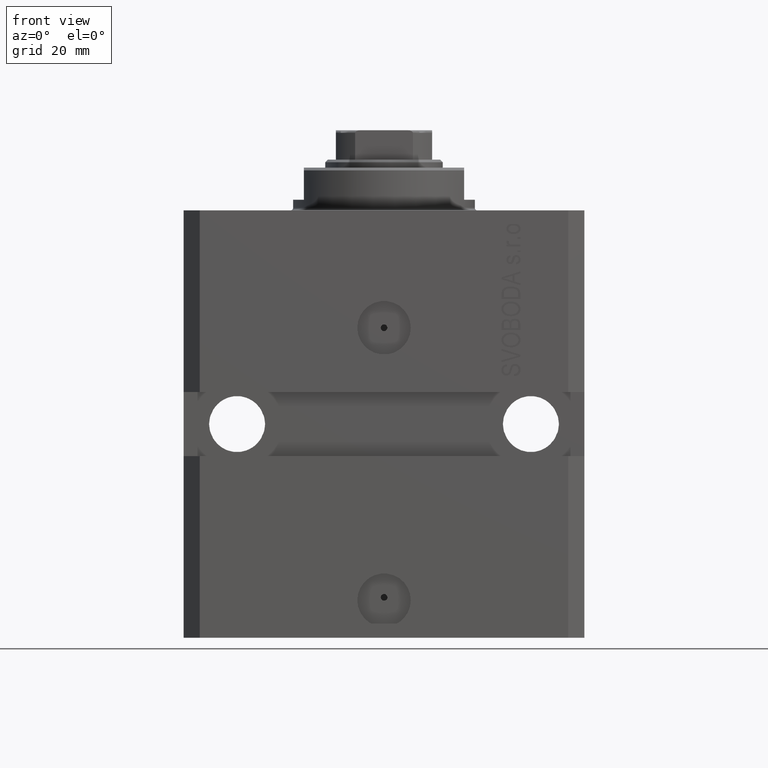
[diagram: clean part render]
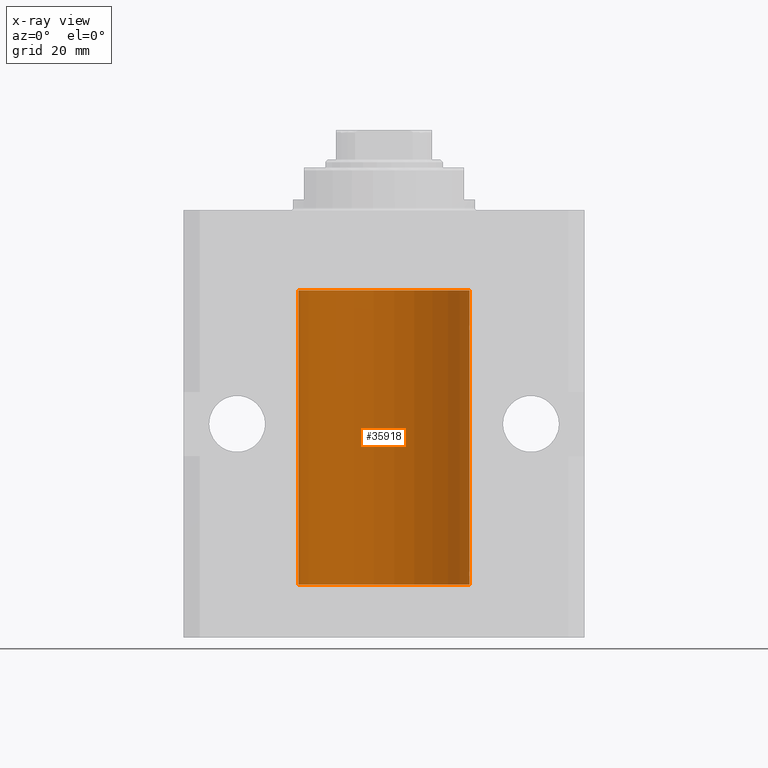
[diagram: x-ray — body ghosted, one internal face saturated and labeled with its STEP entity id]
A machine part, front view, then the same camera in x-ray: the body is ghosted and one INTERNAL B-rep face — a face not visible from any outside direction — is saturated and labeled: STEP entity #35918.
In plain terms, the highlighted cylindrical surface (partial cylindrical patch) has radius 16 mm, axis along (0, 0, 1).
Its self-contained STEP definition (entity closure, byte-faithful):
#1673 = CARTESIAN_POINT ( 'NONE',  ( 15.98778830858070954, 0.6250000000080517815, -67.99999999999916156 ) ) ;
#2321 = CARTESIAN_POINT ( 'NONE',  ( 15.99228275317786441, 0.5002975944204781644, -67.61642014570176684 ) ) ;
#2762 = LINE ( 'NONE', #16747, #36420 ) ;
#3239 = CARTESIAN_POINT ( 'NONE',  ( 15.99070366873610993, 0.5574063959866685236, -22.32639436837549951 ) ) ;
#3292 = VECTOR ( 'NONE', #39887, 1000.000000000000000 ) ;
#3430 = CARTESIAN_POINT ( 'NONE',  ( 15.99999999999999645, 0.1631343969470158417, -67.37500000000021316 ) ) ;
#3655 = CARTESIAN_POINT ( 'NONE',  ( 16.00000000000000000, 0.000000000000000000, -15.00000000000000000 ) ) ;
#5584 = CARTESIAN_POINT ( 'NONE',  ( 16.00000000000000000, 0.000000000000000000, -70.09999999999999432 ) ) ;
#5595 = EDGE_CURVE ( 'NONE', #43330, #27070, #42904, .T. ) ;
#5925 = AXIS2_PLACEMENT_3D ( 'NONE', #9456, #16570, #23013 ) ;
#6421 = EDGE_CURVE ( 'NONE', #40837, #9420, #42235, .T. ) ;
#7235 = CARTESIAN_POINT ( 'NONE',  ( 15.98778830858104172, 0.6249999999996183053, -21.91847885046212951 ) ) ;
#7912 = CARTESIAN_POINT ( 'NONE',  ( 0.000000000000000000, 0.000000000000000000, -15.00000000000000000 ) ) ;
#9420 = VERTEX_POINT ( 'NONE', #42604 ) ;
#9456 = CARTESIAN_POINT ( 'NONE',  ( 0.000000000000000000, 0.000000000000000000, -70.09999999999999432 ) ) ;
#10469 = EDGE_CURVE ( 'NONE', #24605, #43330, #2762, .T. ) ;
#10546 = ORIENTED_EDGE ( 'NONE', *, *, #24732, .T. ) ;
#11036 = EDGE_CURVE ( 'NONE', #36577, #37542, #41424, .T. ) ;
#11043 = CARTESIAN_POINT ( 'NONE',  ( 16.00000000000000000, 6.728408811789801767E-16, -22.62500000000000000 ) ) ;
#11262 = AXIS2_PLACEMENT_3D ( 'NONE', #38624, #31066, #31292 ) ;
#11752 = B_SPLINE_CURVE_WITH_KNOTS ( 'NONE', 3,
 ( #42988, #27467, #28813, #31017, #2321, #25249, #3430, #46770 ),
 .UNSPECIFIED., .F., .F.,
 ( 4, 2, 2, 4 ),
 ( 0.0009773326288700682433, 0.001221554802188685399, 0.001465776975507302772, 0.001954221322144537518 ),
 .UNSPECIFIED. ) ;
#13243 = CYLINDRICAL_SURFACE ( 'NONE', #5925, 16.00000000000000000 ) ;
#14108 = CARTESIAN_POINT ( 'NONE',  ( 15.99711856062700122, 0.3252985083513915687, -21.44140297987714661 ) ) ;
#14358 = CARTESIAN_POINT ( 'NONE',  ( 16.00000000000000000, 0.000000000000000000, -70.09999999999999432 ) ) ;
#15678 = VERTEX_POINT ( 'NONE', #27854 ) ;
#16083 = CARTESIAN_POINT ( 'NONE',  ( -16.00000000000000000, 1.959434878635765131E-15, -70.09999999999999432 ) ) ;
#16338 = FACE_OUTER_BOUND ( 'NONE', #31302, .T. ) ;
#16570 = DIRECTION ( 'NONE',  ( -0.000000000000000000, -0.000000000000000000, 1.000000000000000000 ) ) ;
#16584 = CARTESIAN_POINT ( 'NONE',  ( 15.99548458234361448, 0.3844468804816183471, -68.49947786696357355 ) ) ;
#16747 = CARTESIAN_POINT ( 'NONE',  ( 16.00000000000000000, 0.000000000000000000, -70.09999999999999432 ) ) ;
#16939 = EDGE_CURVE ( 'NONE', #27070, #15678, #26927, .T. ) ;
#17112 = ORIENTED_EDGE ( 'NONE', *, *, #16939, .T. ) ;
#17365 = ORIENTED_EDGE ( 'NONE', *, *, #6421, .T. ) ;
#17461 = CARTESIAN_POINT ( 'NONE',  ( 15.99548458234361092, 0.3844468804815581731, -22.49947786696349894 ) ) ;
#19493 = EDGE_CURVE ( 'NONE', #15678, #28692, #25705, .T. ) ;
#19546 = EDGE_CURVE ( 'NONE', #28692, #37542, #39577, .T. ) ;
#20153 = CARTESIAN_POINT ( 'NONE',  ( -16.00000000000000000, 1.959434878635765131E-15, -15.00000000000000000 ) ) ;
#20767 = CARTESIAN_POINT ( 'NONE',  ( 15.99228275317787507, 0.5002975944204000047, -21.61642014570181303 ) ) ;
#21014 = DIRECTION ( 'NONE',  ( -0.000000000000000000, -0.000000000000000000, 1.000000000000000000 ) ) ;
#21435 = CARTESIAN_POINT ( 'NONE',  ( 16.00000000000000000, 0.000000000000000000, -70.09999999999999432 ) ) ;
#21708 = CARTESIAN_POINT ( 'NONE',  ( 16.00000000000013145, 3.665532684555111376E-13, -21.37499999999658229 ) ) ;
#22385 = DIRECTION ( 'NONE',  ( 0.000000000000000000, 0.000000000000000000, 1.000000000000000000 ) ) ;
#23013 = DIRECTION ( 'NONE',  ( 1.000000000000000000, 0.000000000000000000, 0.000000000000000000 ) ) ;
#24605 = VERTEX_POINT ( 'NONE', #46580 ) ;
#24732 = EDGE_CURVE ( 'NONE', #27191, #40837, #45121, .T. ) ;
#25030 = CARTESIAN_POINT ( 'NONE',  ( 15.98844460043492077, 0.6087869699336542206, -21.83657454967558564 ) ) ;
#25249 = CARTESIAN_POINT ( 'NONE',  ( 15.99711856062700477, 0.3252985083514284281, -67.44140297987711108 ) ) ;
#25526 = CARTESIAN_POINT ( 'NONE',  ( 15.99934183755190986, 0.1636877470526783007, -22.60872690654068151 ) ) ;
#25705 = LINE ( 'NONE', #21435, #3292 ) ;
#25875 = ORIENTED_EDGE ( 'NONE', *, *, #11036, .F. ) ;
#26345 = CARTESIAN_POINT ( 'NONE',  ( -16.00000000000000000, 1.959434878635765131E-15, -70.09999999999999432 ) ) ;
#26927 = B_SPLINE_CURVE_WITH_KNOTS ( 'NONE', 3,
 ( #46554, #7235, #25030, #35221, #20767, #14108, #39461, #21708 ),
 .UNSPECIFIED., .F., .F.,
 ( 4, 2, 2, 4 ),
 ( 0.0009773326288699728335, 0.001221554802188567438, 0.001465776975507162259, 0.001954221322144344530 ),
 .UNSPECIFIED. ) ;
#27048 = CARTESIAN_POINT ( 'NONE',  ( 16.00000000000001066, 0.08261762387943044628, -68.62500000000000000 ) ) ;
#27070 = VERTEX_POINT ( 'NONE', #37220 ) ;
#27191 = VERTEX_POINT ( 'NONE', #14358 ) ;
#27192 = CIRCLE ( 'NONE', #11262, 16.00000000000000000 ) ;
#27467 = CARTESIAN_POINT ( 'NONE',  ( 15.98778830858103817, 0.6249999999997223332, -67.91847885046213662 ) ) ;
#27535 = AXIS2_PLACEMENT_3D ( 'NONE', #7912, #22385, #33500 ) ;
#27854 = CARTESIAN_POINT ( 'NONE',  ( 16.00000000000013145, 3.665532684555111376E-13, -21.37499999999658229 ) ) ;
#28382 = CARTESIAN_POINT ( 'NONE',  ( 15.98778830858101685, 0.6250000000001204592, -22.16311639173018833 ) ) ;
#28610 = CARTESIAN_POINT ( 'NONE',  ( 15.98778830858070954, 0.6250000000079481977, -21.99999999999914735 ) ) ;
#28692 = VERTEX_POINT ( 'NONE', #3655 ) ;
#28813 = CARTESIAN_POINT ( 'NONE',  ( 15.98844460043491367, 0.6087869699337551399, -67.83657454967556077 ) ) ;
#30789 = EDGE_CURVE ( 'NONE', #9420, #24605, #11752, .T. ) ;
#31017 = CARTESIAN_POINT ( 'NONE',  ( 15.99070695999103542, 0.5461439696927204990, -67.68526802364047512 ) ) ;
#31066 = DIRECTION ( 'NONE',  ( 0.000000000000000000, 0.000000000000000000, 1.000000000000000000 ) ) ;
#31292 = DIRECTION ( 'NONE',  ( 1.000000000000000000, 0.000000000000000000, 0.000000000000000000 ) ) ;
#31302 = EDGE_LOOP ( 'NONE', ( #25875, #41705, #10546, #17365, #36294, #33425, #39360, #17112, #38431, #43633 ) ) ;
#31423 = VECTOR ( 'NONE', #42523, 1000.000000000000000 ) ;
#31925 = CARTESIAN_POINT ( 'NONE',  ( 15.99707608081894783, 0.3151028052309810534, -22.54594170697727762 ) ) ;
#33205 = CARTESIAN_POINT ( 'NONE',  ( 16.00000000000000000, 6.728408811789801767E-16, -22.62500000000000000 ) ) ;
#33425 = ORIENTED_EDGE ( 'NONE', *, *, #10469, .T. ) ;
#33500 = DIRECTION ( 'NONE',  ( 1.000000000000000000, 0.000000000000000000, 0.000000000000000000 ) ) ;
#34133 = CARTESIAN_POINT ( 'NONE',  ( 15.99934183755190986, 0.1636877470527013101, -68.60872690654070993 ) ) ;
#34325 = DIRECTION ( 'NONE',  ( -0.000000000000000000, -0.000000000000000000, 1.000000000000000000 ) ) ;
#34595 = CARTESIAN_POINT ( 'NONE',  ( 15.98778830858101685, 0.6250000000002223777, -68.16311639173024162 ) ) ;
#35221 = CARTESIAN_POINT ( 'NONE',  ( 15.99070695999104252, 0.5461439696926363441, -21.68526802364053552 ) ) ;
#35712 = CARTESIAN_POINT ( 'NONE',  ( 16.00000000000000711, 0.08261762387942241104, -22.62499999999997158 ) ) ;
#35918 = ADVANCED_FACE ( 'NONE', ( #16338 ), #13243, .F. ) ;
#36294 = ORIENTED_EDGE ( 'NONE', *, *, #30789, .T. ) ;
#36420 = VECTOR ( 'NONE', #21014, 1000.000000000000000 ) ;
#36577 = VERTEX_POINT ( 'NONE', #26345 ) ;
#37220 = CARTESIAN_POINT ( 'NONE',  ( 15.98778830858070954, 0.6250000000079481977, -21.99999999999914735 ) ) ;
#37542 = VERTEX_POINT ( 'NONE', #20153 ) ;
#37575 = EDGE_CURVE ( 'NONE', #27191, #36577, #27192, .T. ) ;
#38431 = ORIENTED_EDGE ( 'NONE', *, *, #19493, .T. ) ;
#38624 = CARTESIAN_POINT ( 'NONE',  ( 0.000000000000000000, 0.000000000000000000, -70.09999999999999432 ) ) ;
#39360 = ORIENTED_EDGE ( 'NONE', *, *, #5595, .T. ) ;
#39461 = CARTESIAN_POINT ( 'NONE',  ( 15.99999999999999289, 0.1631343969470015476, -21.37500000000020606 ) ) ;
#39577 = CIRCLE ( 'NONE', #27535, 16.00000000000000000 ) ;
#39887 = DIRECTION ( 'NONE',  ( -0.000000000000000000, -0.000000000000000000, 1.000000000000000000 ) ) ;
#40837 = VERTEX_POINT ( 'NONE', #41362 ) ;
#40953 = VECTOR ( 'NONE', #34325, 1000.000000000000000 ) ;
#41237 = CARTESIAN_POINT ( 'NONE',  ( 16.00000000000000000, -1.835653844722709729E-15, -68.62500000000000000 ) ) ;
#41362 = CARTESIAN_POINT ( 'NONE',  ( 16.00000000000000000, -1.835653844722709729E-15, -68.62500000000000000 ) ) ;
#41424 = LINE ( 'NONE', #16083, #40953 ) ;
#41463 = CARTESIAN_POINT ( 'NONE',  ( 15.99707608081895138, 0.3151028052310259620, -68.54594170697733091 ) ) ;
#41698 = CARTESIAN_POINT ( 'NONE',  ( 15.99070366873610283, 0.5574063959867601170, -68.32639436837555991 ) ) ;
#41705 = ORIENTED_EDGE ( 'NONE', *, *, #37575, .F. ) ;
#42235 = B_SPLINE_CURVE_WITH_KNOTS ( 'NONE', 3,
 ( #41237, #27048, #34133, #41463, #16584, #41698, #34595, #1673 ),
 .UNSPECIFIED., .F., .F.,
 ( 4, 2, 2, 4 ),
 ( 1.783888443149829469E-18, 0.0002443331572175257886, 0.0004886663144350497342, 0.0009773326288700682433 ),
 .UNSPECIFIED. ) ;
#42523 = DIRECTION ( 'NONE',  ( -0.000000000000000000, -0.000000000000000000, 1.000000000000000000 ) ) ;
#42604 = CARTESIAN_POINT ( 'NONE',  ( 15.98778830858070954, 0.6250000000080517815, -67.99999999999916156 ) ) ;
#42904 = B_SPLINE_CURVE_WITH_KNOTS ( 'NONE', 3,
 ( #11043, #35712, #25526, #31925, #17461, #3239, #28382, #28610 ),
 .UNSPECIFIED., .F., .F.,
 ( 4, 2, 2, 4 ),
 ( 6.538667818360814107E-19, 0.0002443331572174917989, 0.0004886663144349829473, 0.0009773326288699728335 ),
 .UNSPECIFIED. ) ;
#42988 = CARTESIAN_POINT ( 'NONE',  ( 15.98778830858070954, 0.6250000000080517815, -67.99999999999916156 ) ) ;
#43330 = VERTEX_POINT ( 'NONE', #33205 ) ;
#43633 = ORIENTED_EDGE ( 'NONE', *, *, #19546, .T. ) ;
#45121 = LINE ( 'NONE', #5584, #31423 ) ;
#46554 = CARTESIAN_POINT ( 'NONE',  ( 15.98778830858070954, 0.6250000000079481977, -21.99999999999914735 ) ) ;
#46580 = CARTESIAN_POINT ( 'NONE',  ( 16.00000000000013145, 3.665532692826917502E-13, -67.37499999999657518 ) ) ;
#46770 = CARTESIAN_POINT ( 'NONE',  ( 16.00000000000013145, 3.665532692826917502E-13, -67.37499999999657518 ) ) ;